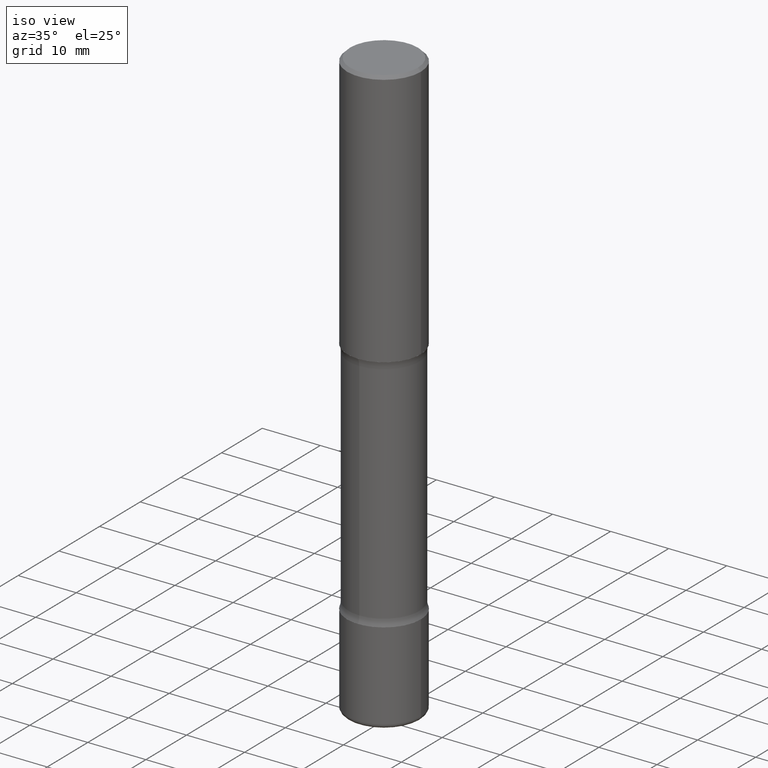
[diagram: clean part render]
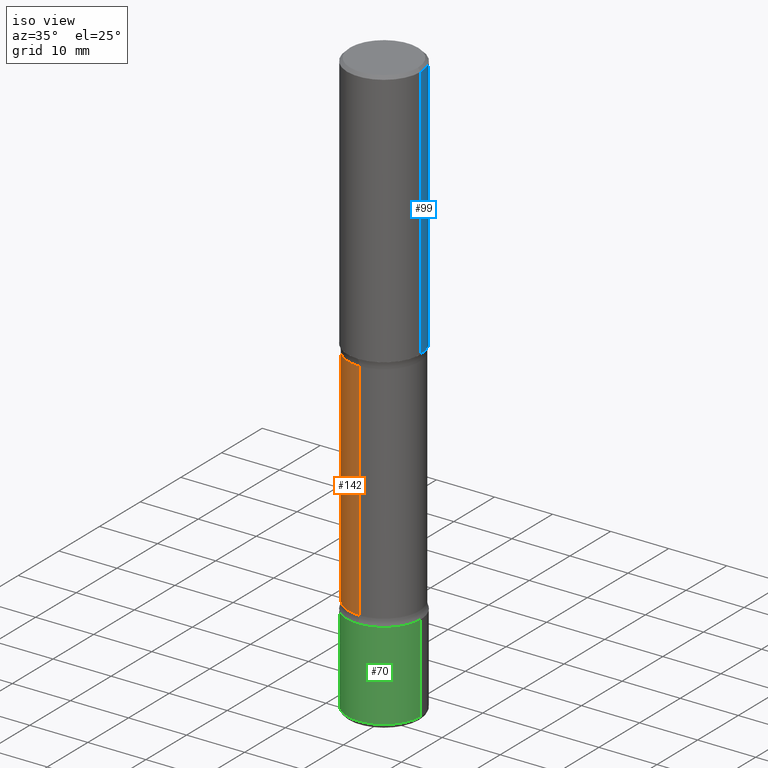
[diagram: same view with three faces highlighted in distinct colors, each labeled with its STEP entity id]
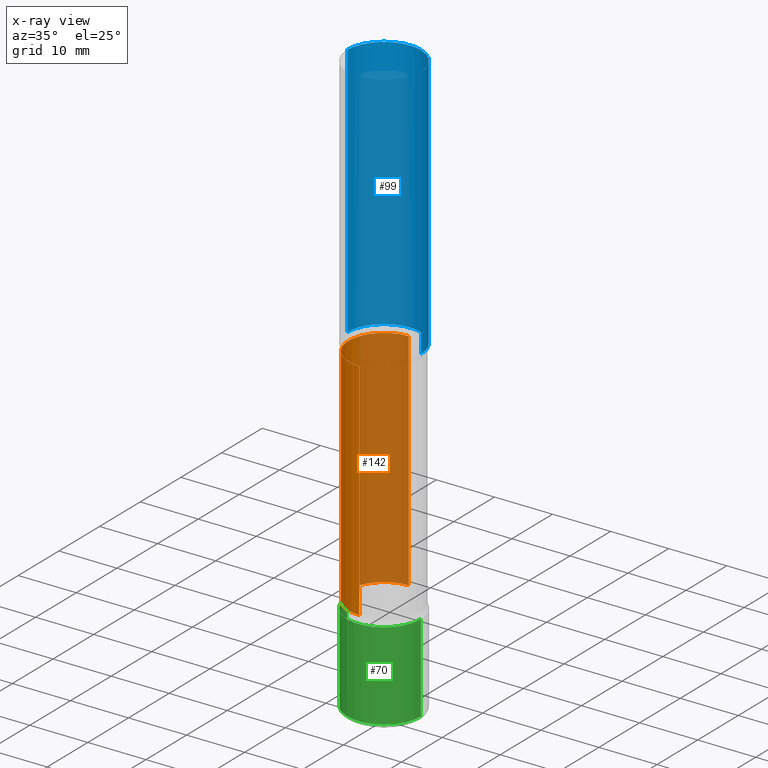
[diagram: x-ray of the same camera — body ghosted, the three highlighted faces saturated]
A machine part, iso view with three faces highlighted in distinct colors.
The next image is the same camera in x-ray (body ghosted, the three faces saturated) — at least one of them is partly hidden behind the body in this view.
Their STEP definitions:

[orange] entity #142 — the highlighted cylindrical surface (partial cylindrical patch) has radius 6.096 mm, axis along (0, -0, -1).
#2 = CARTESIAN_POINT ( 'NONE',  ( 9.556582629979415278E-29, -1.428855717392867652E-14, -3.999999999999998668 ) ) ;
#7 = DIRECTION ( 'NONE',  ( 2.085000654567330410E-29, -4.007692248532904727E-15, -1.000000000000000000 ) ) ;
#24 = DIRECTION ( 'NONE',  ( 2.085000654567330410E-29, -4.007692248532904727E-15, -1.000000000000000000 ) ) ;
#29 = CARTESIAN_POINT ( 'NONE',  ( 1.675911042644746767E-15, 0.2399999999999935796, -1.798989794855665014 ) ) ;
#39 = EDGE_CURVE ( 'NONE', #130, #323, #192, .T. ) ;
#47 = CIRCLE ( 'NONE', #231, 0.2399999999999999356 ) ;
#59 = DIRECTION ( 'NONE',  ( 2.085000654567330410E-29, -4.007692248532904727E-15, -1.000000000000000000 ) ) ;
#85 = EDGE_CURVE ( 'NONE', #415, #257, #47, .T. ) ;
#129 = AXIS2_PLACEMENT_3D ( 'NONE', #2, #478, #528 ) ;
#130 = VERTEX_POINT ( 'NONE', #137 ) ;
#137 = CARTESIAN_POINT ( 'NONE',  ( -1.680822009453969216E-15, -0.2400000000000045153, -1.798989794855662794 ) ) ;
#142 = ADVANCED_FACE ( 'NONE', ( #388 ), #187, .T. ) ;
#164 = ORIENTED_EDGE ( 'NONE', *, *, #392, .F. ) ;
#187 = CYLINDRICAL_SURFACE ( 'NONE', #129, 0.2399999999999994915 ) ;
#189 = CARTESIAN_POINT ( 'NONE',  ( 1.675911042644795873E-15, 0.2399999999999852252, -4.000000000000000000 ) ) ;
#192 = CIRCLE ( 'NONE', #355, 0.2399999999999990474 ) ;
#200 = ORIENTED_EDGE ( 'NONE', *, *, #39, .T. ) ;
#213 = EDGE_LOOP ( 'NONE', ( #164, #200, #458, #242 ) ) ;
#231 = AXIS2_PLACEMENT_3D ( 'NONE', #350, #7, #311 ) ;
#242 = ORIENTED_EDGE ( 'NONE', *, *, #85, .F. ) ;
#257 = VERTEX_POINT ( 'NONE', #452 ) ;
#274 = VECTOR ( 'NONE', #59, 39.37007874015748143 ) ;
#292 = VECTOR ( 'NONE', #24, 39.37007874015748143 ) ;
#311 = DIRECTION ( 'NONE',  ( 6.982962677686265922E-15, 1.000000000000000000, -4.553079989440439881E-15 ) ) ;
#323 = VERTEX_POINT ( 'NONE', #29 ) ;
#326 = EDGE_CURVE ( 'NONE', #323, #257, #401, .T. ) ;
#350 = CARTESIAN_POINT ( 'NONE',  ( 8.151313466533656524E-29, -1.158741349749535365E-14, -3.326010205144335430 ) ) ;
#355 = AXIS2_PLACEMENT_3D ( 'NONE', #556, #463, #382 ) ;
#370 = CARTESIAN_POINT ( 'NONE',  ( -1.680822009453943972E-15, -0.2400000000000115097, -3.326010205144334542 ) ) ;
#382 = DIRECTION ( 'NONE',  ( 6.982962677686265133E-15, 1.000000000000000000, -4.553079989440456447E-15 ) ) ;
#388 = FACE_OUTER_BOUND ( 'NONE', #213, .T. ) ;
#392 = EDGE_CURVE ( 'NONE', #130, #415, #409, .T. ) ;
#401 = LINE ( 'NONE', #189, #274 ) ;
#409 = LINE ( 'NONE', #454, #292 ) ;
#415 = VERTEX_POINT ( 'NONE', #370 ) ;
#452 = CARTESIAN_POINT ( 'NONE',  ( 1.675911042644784829E-15, 0.2399999999999883615, -3.326010205144336762 ) ) ;
#454 = CARTESIAN_POINT ( 'NONE',  ( -1.646519519465068360E-15, -0.2400000000000137579, -3.999999999999997780 ) ) ;
#458 = ORIENTED_EDGE ( 'NONE', *, *, #326, .T. ) ;
#463 = DIRECTION ( 'NONE',  ( 2.085000654567330410E-29, -4.007692248532904727E-15, -1.000000000000000000 ) ) ;
#478 = DIRECTION ( 'NONE',  ( 2.085000654567330410E-29, -4.007692248532904727E-15, -1.000000000000000000 ) ) ;
#528 = DIRECTION ( 'NONE',  ( 6.982962677686265922E-15, 1.000000000000000000, -4.553079989440448558E-15 ) ) ;
#556 = CARTESIAN_POINT ( 'NONE',  ( 4.967474911544103028E-29, -5.467585635829907865E-15, -1.798989794855663904 ) ) ;

[blue] entity #99 — the highlighted cylindrical surface (partial cylindrical patch) has radius 6.35 mm, axis along (-0, 0, 1).
#22 = CIRCLE ( 'NONE', #94, 0.2500000000000001110 ) ;
#25 = VERTEX_POINT ( 'NONE', #503 ) ;
#36 = EDGE_CURVE ( 'NONE', #501, #321, #82, .T. ) ;
#41 = AXIS2_PLACEMENT_3D ( 'NONE', #83, #255, #422 ) ;
#50 = DIRECTION ( 'NONE',  ( 1.000000000000000000, -6.982962677686267499E-15, 4.876176775795936353E-29 ) ) ;
#75 = EDGE_CURVE ( 'NONE', #501, #25, #366, .T. ) ;
#82 = LINE ( 'NONE', #297, #344 ) ;
#83 = CARTESIAN_POINT ( 'NONE',  ( 4.279570410823988484E-29, -6.110092342975504671E-15, -1.750000000000000000 ) ) ;
#94 = AXIS2_PLACEMENT_3D ( 'NONE', #154, #547, #543 ) ;
#99 = ADVANCED_FACE ( 'NONE', ( #217 ), #144, .T. ) ;
#107 = ORIENTED_EDGE ( 'NONE', *, *, #36, .F. ) ;
#144 = CYLINDRICAL_SURFACE ( 'NONE', #389, 0.2500000000000002220 ) ;
#152 = DIRECTION ( 'NONE',  ( -2.445468806185136877E-29, 3.491481338843145188E-15, 1.000000000000000000 ) ) ;
#154 = CARTESIAN_POINT ( 'NONE',  ( 4.890937612370273159E-31, -6.982962677686291609E-17, -0.02000000000000000042 ) ) ;
#191 = LINE ( 'NONE', #236, #220 ) ;
#199 = CARTESIAN_POINT ( 'NONE',  ( -0.2500000000000001110, 1.675911042644704760E-15, -0.02000000000000000042 ) ) ;
#217 = FACE_OUTER_BOUND ( 'NONE', #539, .T. ) ;
#220 = VECTOR ( 'NONE', #152, 39.37007874015748143 ) ;
#236 = CARTESIAN_POINT ( 'NONE',  ( -0.2500000000000002220, 1.776356839400252042E-15, -1.229733772563727566E-29 ) ) ;
#247 = ORIENTED_EDGE ( 'NONE', *, *, #75, .T. ) ;
#254 = DIRECTION ( 'NONE',  ( -2.445468806185136877E-29, 3.491481338843145188E-15, 1.000000000000000000 ) ) ;
#255 = DIRECTION ( 'NONE',  ( -2.445468806185136597E-29, 3.491481338843145583E-15, 1.000000000000000000 ) ) ;
#261 = CARTESIAN_POINT ( 'NONE',  ( 0.2500000000000003331, -7.855833012397073715E-15, -1.750000000000000000 ) ) ;
#295 = ORIENTED_EDGE ( 'NONE', *, *, #335, .F. ) ;
#297 = CARTESIAN_POINT ( 'NONE',  ( 0.2500000000000002220, -1.745740669421568453E-15, 1.219044193948985209E-29 ) ) ;
#321 = VERTEX_POINT ( 'NONE', #368 ) ;
#335 = EDGE_CURVE ( 'NONE', #321, #343, #22, .T. ) ;
#343 = VERTEX_POINT ( 'NONE', #199 ) ;
#344 = VECTOR ( 'NONE', #254, 39.37007874015748143 ) ;
#366 = CIRCLE ( 'NONE', #41, 0.2500000000000003331 ) ;
#368 = CARTESIAN_POINT ( 'NONE',  ( 0.2500000000000001110, -1.784954126219746583E-15, -0.02000000000000000042 ) ) ;
#387 = ORIENTED_EDGE ( 'NONE', *, *, #417, .T. ) ;
#389 = AXIS2_PLACEMENT_3D ( 'NONE', #483, #519, #50 ) ;
#417 = EDGE_CURVE ( 'NONE', #25, #343, #191, .T. ) ;
#422 = DIRECTION ( 'NONE',  ( 1.000000000000000000, -6.982962677686265133E-15, 0.000000000000000000 ) ) ;
#483 = CARTESIAN_POINT ( 'NONE',  ( 0.000000000000000000, 0.000000000000000000, 0.000000000000000000 ) ) ;
#501 = VERTEX_POINT ( 'NONE', #261 ) ;
#503 = CARTESIAN_POINT ( 'NONE',  ( -0.2500000000000003331, -1.313604145475929576E-15, -1.750000000000000000 ) ) ;
#519 = DIRECTION ( 'NONE',  ( -2.445468806185136597E-29, 3.491481338843145583E-15, 1.000000000000000000 ) ) ;
#539 = EDGE_LOOP ( 'NONE', ( #247, #387, #295, #107 ) ) ;
#543 = DIRECTION ( 'NONE',  ( 1.000000000000000000, -6.982962677686267499E-15, 0.000000000000000000 ) ) ;
#547 = DIRECTION ( 'NONE',  ( -2.445468806185136597E-29, 3.491481338843145583E-15, 1.000000000000000000 ) ) ;

[green] entity #70 — the highlighted cylindrical surface (partial cylindrical patch) has radius 6.35 mm, axis along (-0, 0, 1).
#4 = DIRECTION ( 'NONE',  ( 1.000000000000000000, -6.982962677686269077E-15, 0.000000000000000000 ) ) ;
#26 = CARTESIAN_POINT ( 'NONE',  ( -0.2500000000000003331, -1.104610837750119891E-14, -3.375000000000000000 ) ) ;
#30 = VERTEX_POINT ( 'NONE', #291 ) ;
#45 = ORIENTED_EDGE ( 'NONE', *, *, #456, .F. ) ;
#62 = CARTESIAN_POINT ( 'NONE',  ( 0.2500000000000002776, -1.560692158462885722E-14, -3.969999999999999307 ) ) ;
#63 = VERTEX_POINT ( 'NONE', #340 ) ;
#70 = ADVANCED_FACE ( 'NONE', ( #166 ), #337, .T. ) ;
#91 = LINE ( 'NONE', #221, #545 ) ;
#104 = AXIS2_PLACEMENT_3D ( 'NONE', #505, #125, #462 ) ;
#106 = CARTESIAN_POINT ( 'NONE',  ( 9.708511160554990630E-29, -1.386118091520728581E-14, -3.969999999999999307 ) ) ;
#119 = LINE ( 'NONE', #205, #293 ) ;
#125 = DIRECTION ( 'NONE',  ( -2.445468806185136597E-29, 3.491481338843145583E-15, 1.000000000000000000 ) ) ;
#151 = CIRCLE ( 'NONE', #460, 0.2500000000000002776 ) ;
#155 = ORIENTED_EDGE ( 'NONE', *, *, #196, .T. ) ;
#162 = ORIENTED_EDGE ( 'NONE', *, *, #430, .F. ) ;
#166 = FACE_OUTER_BOUND ( 'NONE', #532, .T. ) ;
#178 = DIRECTION ( 'NONE',  ( -2.445468806185136877E-29, 3.491481338843145188E-15, 1.000000000000000000 ) ) ;
#194 = AXIS2_PLACEMENT_3D ( 'NONE', #494, #390, #4 ) ;
#196 = EDGE_CURVE ( 'NONE', #331, #30, #91, .T. ) ;
#205 = CARTESIAN_POINT ( 'NONE',  ( -0.2500000000000003331, 1.776356839400252831E-15, -1.229733772563727987E-29 ) ) ;
#221 = CARTESIAN_POINT ( 'NONE',  ( 0.2500000000000003331, -1.745740669421569044E-15, 1.219044193948985630E-29 ) ) ;
#281 = ORIENTED_EDGE ( 'NONE', *, *, #414, .T. ) ;
#286 = VERTEX_POINT ( 'NONE', #26 ) ;
#291 = CARTESIAN_POINT ( 'NONE',  ( 0.2500000000000003331, -1.352949018801718435E-14, -3.375000000000000000 ) ) ;
#293 = VECTOR ( 'NONE', #349, 39.37007874015748143 ) ;
#331 = VERTEX_POINT ( 'NONE', #62 ) ;
#337 = CYLINDRICAL_SURFACE ( 'NONE', #104, 0.2500000000000003331 ) ;
#339 = CIRCLE ( 'NONE', #194, 0.2500000000000003331 ) ;
#340 = CARTESIAN_POINT ( 'NONE',  ( -0.2500000000000002776, -1.208482407580703376E-14, -3.969999999999999307 ) ) ;
#349 = DIRECTION ( 'NONE',  ( -2.445468806185136877E-29, 3.491481338843145188E-15, 1.000000000000000000 ) ) ;
#390 = DIRECTION ( 'NONE',  ( -2.445468806185136597E-29, 3.491481338843145583E-15, 1.000000000000000000 ) ) ;
#414 = EDGE_CURVE ( 'NONE', #63, #331, #151, .T. ) ;
#430 = EDGE_CURVE ( 'NONE', #286, #30, #339, .T. ) ;
#444 = DIRECTION ( 'NONE',  ( -2.445468806185136597E-29, 3.491481338843145583E-15, 1.000000000000000000 ) ) ;
#456 = EDGE_CURVE ( 'NONE', #63, #286, #119, .T. ) ;
#460 = AXIS2_PLACEMENT_3D ( 'NONE', #106, #444, #541 ) ;
#462 = DIRECTION ( 'NONE',  ( 1.000000000000000000, -6.982962677686266711E-15, 4.876176775795935793E-29 ) ) ;
#494 = CARTESIAN_POINT ( 'NONE',  ( 8.253457220874836014E-29, -1.178374951859561452E-14, -3.375000000000000000 ) ) ;
#505 = CARTESIAN_POINT ( 'NONE',  ( 0.000000000000000000, 0.000000000000000000, 0.000000000000000000 ) ) ;
#532 = EDGE_LOOP ( 'NONE', ( #45, #281, #155, #162 ) ) ;
#541 = DIRECTION ( 'NONE',  ( 1.000000000000000000, -6.982962677686270655E-15, 0.000000000000000000 ) ) ;
#545 = VECTOR ( 'NONE', #178, 39.37007874015748143 ) ;